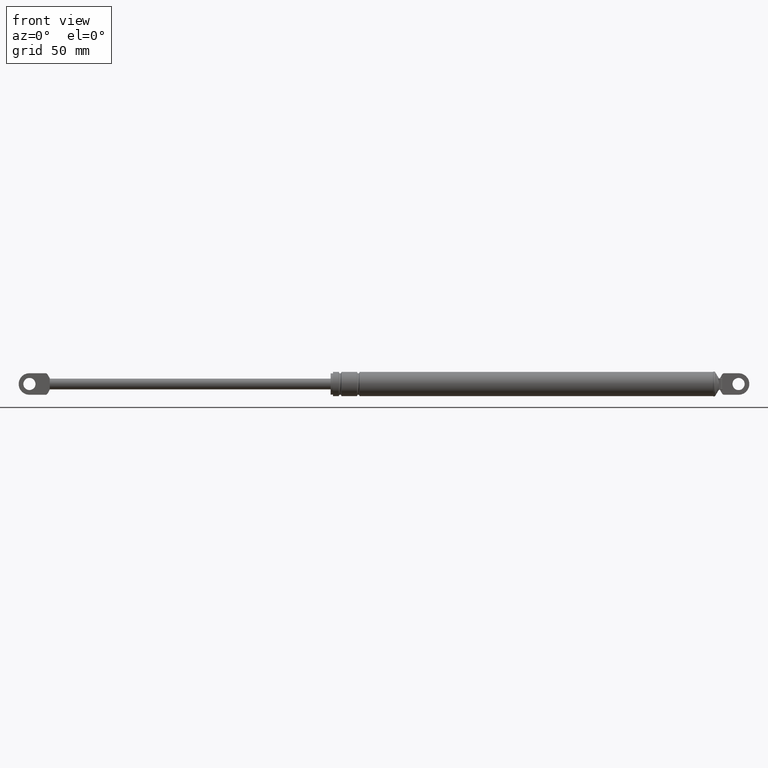
[diagram: clean part render]
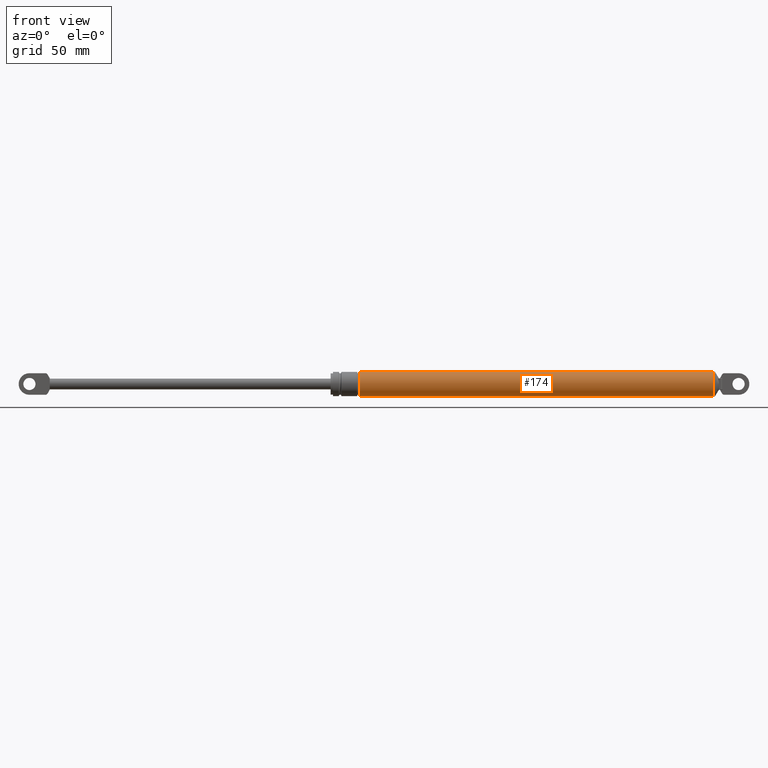
[diagram: same view with one face highlighted and labeled with its STEP entity id]
A machine part, front view. The second image highlights one B-rep face of the part: STEP entity #174.
In plain terms, the highlighted cylindrical surface (edge-blend (fillet) strip) has radius 9 mm, axis along (1, 0, 0).
Its self-contained STEP definition (entity closure, byte-faithful):
#174=ADVANCED_FACE('',(#829),#828,.T.);
#828=CYLINDRICAL_SURFACE('',#1694,9.00000000000E+000);
#829=FACE_OUTER_BOUND('',#1695,.T.);
#1691=CARTESIAN_POINT('',(0.00000000000E+000,0.00000000000E+000,2.06267818784E+002));
#1692=DIRECTION('',(1.00000000000E+000,-0.00000000000E+000,-0.00000000000E+000));
#1693=DIRECTION('',(-0.00000000000E+000,-0.00000000000E+000,-1.00000000000E+000));
#1694=AXIS2_PLACEMENT_3D('',#1691,#1692,#1693);
#1695=EDGE_LOOP('',(#2156,#2157,#2158,#2159));
#2156=ORIENTED_EDGE('',*,*,#2349,.F.);
#2157=ORIENTED_EDGE('',*,*,#2437,.T.);
#2158=ORIENTED_EDGE('',*,*,#2439,.T.);
#2159=ORIENTED_EDGE('',*,*,#2438,.F.);
#2349=EDGE_CURVE('',#2963,#2962,#2970,.T.);
#2437=EDGE_CURVE('',#2963,#3533,#3540,.T.);
#2438=EDGE_CURVE('',#2962,#3532,#3546,.T.);
#2439=EDGE_CURVE('',#3533,#3532,#3552,.T.);
#2962=VERTEX_POINT('',#4227);
#2963=VERTEX_POINT('',#4228);
#2970=CIRCLE('',#4236,9.00000000000E+000);
#3532=VERTEX_POINT('',#4620);
#3533=VERTEX_POINT('',#4621);
#3540=(BOUNDED_CURVE() B_SPLINE_CURVE(1,(#4626,#4627),.UNSPECIFIED.,.F.,.F.) B_SPLINE_CURVE_WITH_KNOTS((2,2),(3.54798651303E-002,9.64520134830E-001),.UNSPECIFIED.) CURVE() GEOMETRIC_REPRESENTATION_ITEM() RATIONAL_B_SPLINE_CURVE((1.00000000000E+000,1.00000000000E+000)) REPRESENTATION_ITEM('') );
#3546=(BOUNDED_CURVE() B_SPLINE_CURVE(1,(#4628,#4629),.UNSPECIFIED.,.F.,.F.) B_SPLINE_CURVE_WITH_KNOTS((2,2),(3.54798651765E-002,9.64520134823E-001),.UNSPECIFIED.) CURVE() GEOMETRIC_REPRESENTATION_ITEM() RATIONAL_B_SPLINE_CURVE((7.50000000000E-001,7.50000000000E-001)) REPRESENTATION_ITEM('') );
#3552=CIRCLE('',#4633,9.00000000000E+000);
#4227=CARTESIAN_POINT('',(1.73266930088E+002,0.00000000000E+000,2.15267818784E+002));
#4228=CARTESIAN_POINT('',(1.73266930088E+002,5.92118946467E-016,1.97267818784E+002));
#4233=CARTESIAN_POINT('',(1.73266930088E+002,0.00000000000E+000,2.06267818784E+002));
#4234=DIRECTION('',(-1.00000000000E+000,0.00000000000E+000,0.00000000000E+000));
#4235=DIRECTION('',(0.00000000000E+000,-1.22460635382E-016,1.00000000000E+000));
#4236=AXIS2_PLACEMENT_3D('',#4233,#4234,#4235);
#4620=CARTESIAN_POINT('',(4.35116930088E+002,0.00000000000E+000,2.15267818784E+002));
#4621=CARTESIAN_POINT('',(4.35116930088E+002,5.92118946467E-016,1.97267818784E+002));
#4626=CARTESIAN_POINT('',(1.73266930075E+002,0.00000000000E+000,1.97267818784E+002));
#4627=CARTESIAN_POINT('',(4.35116930090E+002,0.00000000000E+000,1.97267818784E+002));
#4628=CARTESIAN_POINT('',(1.73266930088E+002,-2.96059473233E-016,2.15267818784E+002));
#4629=CARTESIAN_POINT('',(4.35116930088E+002,-2.96059473233E-016,2.15267818784E+002));
#4630=CARTESIAN_POINT('',(4.35116930088E+002,0.00000000000E+000,2.06267818784E+002));
#4631=DIRECTION('',(-1.00000000000E+000,0.00000000000E+000,0.00000000000E+000));
#4632=DIRECTION('',(0.00000000000E+000,-1.22460635382E-016,1.00000000000E+000));
#4633=AXIS2_PLACEMENT_3D('',#4630,#4631,#4632);